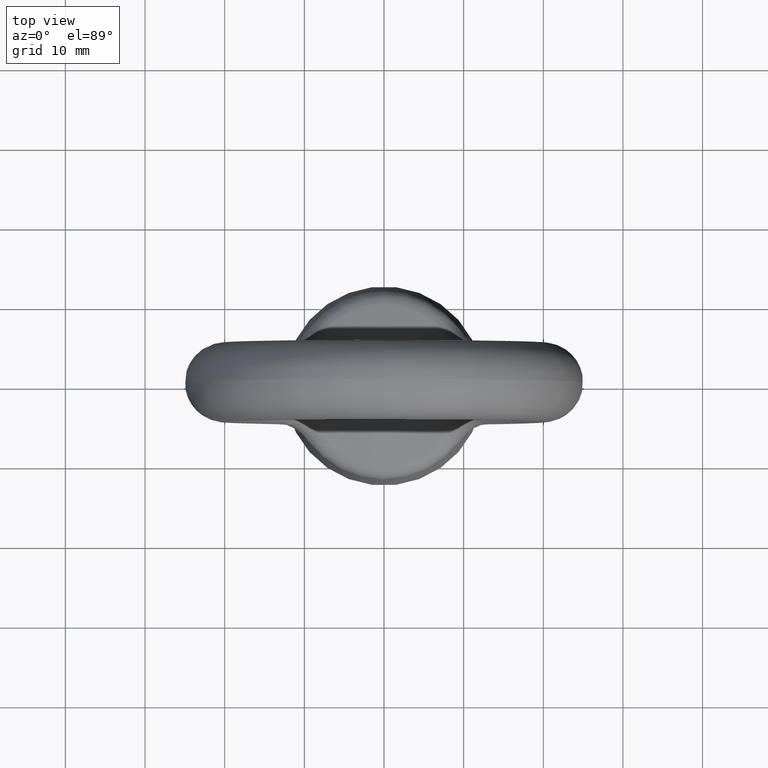
[diagram: clean part render]
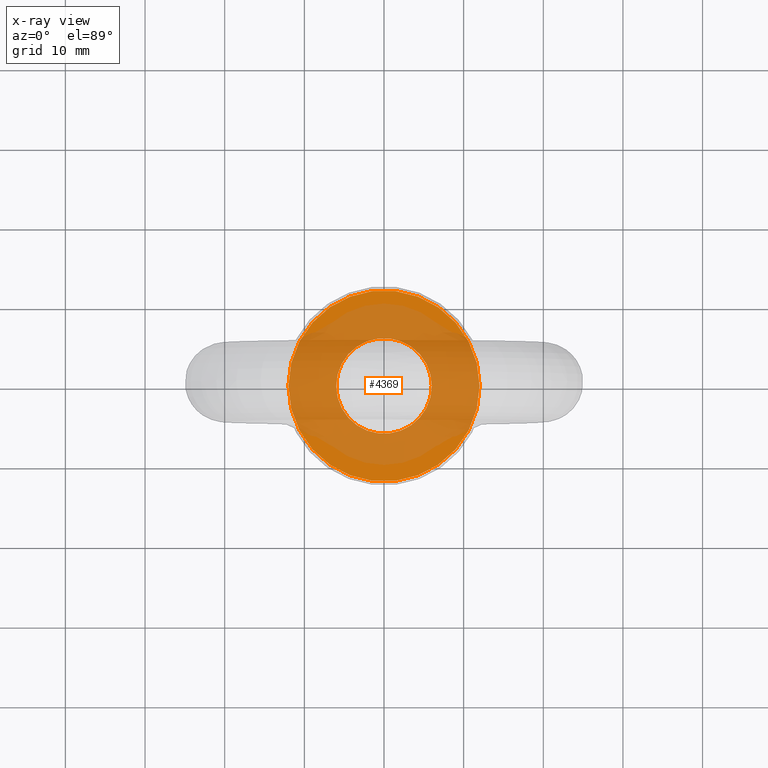
[diagram: x-ray — body ghosted, one internal face saturated and labeled with its STEP entity id]
A machine part, top view, then the same camera in x-ray: the body is ghosted and one INTERNAL B-rep face — a face not visible from any outside direction — is saturated and labeled: STEP entity #4369.
In plain terms, the highlighted planar face has unit normal (0, 0, 1).
Its self-contained STEP definition (entity closure, byte-faithful):
#4328 = VERTEX_POINT ( 'NONE', #8184 ) ;
#4345 = VERTEX_POINT ( 'NONE', #8192 ) ;
#4347 = EDGE_CURVE ( 'NONE', #4345, #4348, #8054, .T. ) ;
#4348 = VERTEX_POINT ( 'NONE', #8050 ) ;
#4368 = EDGE_LOOP ( 'NONE', ( #4443, #4444 ) ) ;
#4369 = ADVANCED_FACE ( 'NONE', ( #8101, #8071 ), #8070, .T. ) ;
#4370 = EDGE_CURVE ( 'NONE', #4386, #4328, #8155, .T. ) ;
#4385 = EDGE_CURVE ( 'NONE', #4328, #4386, #8060, .T. ) ;
#4386 = VERTEX_POINT ( 'NONE', #8056 ) ;
#4443 = ORIENTED_EDGE ( 'NONE', *, *, #4370, .T. ) ;
#4444 = ORIENTED_EDGE ( 'NONE', *, *, #4385, .T. ) ;
#4445 = EDGE_LOOP ( 'NONE', ( #4448, #4449 ) ) ;
#4448 = ORIENTED_EDGE ( 'NONE', *, *, #4347, .F. ) ;
#4449 = ORIENTED_EDGE ( 'NONE', *, *, #4454, .F. ) ;
#4454 = EDGE_CURVE ( 'NONE', #4348, #4345, #8319, .T. ) ;
#8050 = CARTESIAN_POINT ( 'NONE',  ( 12.00000000000000000, 1.469527624586852700E-015, -26.00000000000000000 ) ) ;
#8051 = DIRECTION ( 'NONE',  ( 1.000000000000000000, 0.0000000000000000000, 0.0000000000000000000 ) ) ;
#8052 = DIRECTION ( 'NONE',  ( 0.0000000000000000000, 0.0000000000000000000, -1.000000000000000000 ) ) ;
#8053 = AXIS2_PLACEMENT_3D ( 'NONE', #8191, #8052, #8051 ) ;
#8054 = CIRCLE ( 'NONE', #8053, 12.00000000000000000 ) ;
#8056 = CARTESIAN_POINT ( 'NONE',  ( -6.000000000000000000, 0.0000000000000000000, -26.00000000000000000 ) ) ;
#8057 = DIRECTION ( 'NONE',  ( 1.000000000000000000, 0.0000000000000000000, 0.0000000000000000000 ) ) ;
#8058 = DIRECTION ( 'NONE',  ( 0.0000000000000000000, 0.0000000000000000000, -1.000000000000000000 ) ) ;
#8059 = AXIS2_PLACEMENT_3D ( 'NONE', #8064, #8058, #8057 ) ;
#8060 = CIRCLE ( 'NONE', #8059, 6.000000000000000000 ) ;
#8064 = CARTESIAN_POINT ( 'NONE',  ( 0.0000000000000000000, 0.0000000000000000000, -26.00000000000000000 ) ) ;
#8065 = CARTESIAN_POINT ( 'NONE',  ( 0.0000000000000000000, 0.0000000000000000000, -26.00000000000000000 ) ) ;
#8066 = DIRECTION ( 'NONE',  ( 1.000000000000000000, 0.0000000000000000000, 0.0000000000000000000 ) ) ;
#8067 = DIRECTION ( 'NONE',  ( 0.0000000000000000000, 0.0000000000000000000, 1.000000000000000000 ) ) ;
#8068 = CARTESIAN_POINT ( 'NONE',  ( 0.0000000000000000000, 0.0000000000000000000, -26.00000000000000000 ) ) ;
#8069 = AXIS2_PLACEMENT_3D ( 'NONE', #8068, #8067, #8066 ) ;
#8070 = PLANE ( 'NONE',  #8069 ) ;
#8071 = FACE_OUTER_BOUND ( 'NONE', #4445, .T. ) ;
#8101 = FACE_BOUND ( 'NONE', #4368, .T. ) ;
#8152 = DIRECTION ( 'NONE',  ( 1.000000000000000000, 0.0000000000000000000, 0.0000000000000000000 ) ) ;
#8153 = DIRECTION ( 'NONE',  ( 0.0000000000000000000, 0.0000000000000000000, -1.000000000000000000 ) ) ;
#8154 = AXIS2_PLACEMENT_3D ( 'NONE', #8065, #8153, #8152 ) ;
#8155 = CIRCLE ( 'NONE', #8154, 6.000000000000000000 ) ;
#8184 = CARTESIAN_POINT ( 'NONE',  ( 6.000000000000000000, 7.347638122934263500E-016, -26.00000000000000000 ) ) ;
#8191 = CARTESIAN_POINT ( 'NONE',  ( 0.0000000000000000000, 0.0000000000000000000, -26.00000000000000000 ) ) ;
#8192 = CARTESIAN_POINT ( 'NONE',  ( -12.00000000000000000, 0.0000000000000000000, -26.00000000000000000 ) ) ;
#8315 = DIRECTION ( 'NONE',  ( 1.000000000000000000, 0.0000000000000000000, 0.0000000000000000000 ) ) ;
#8316 = DIRECTION ( 'NONE',  ( 0.0000000000000000000, 0.0000000000000000000, -1.000000000000000000 ) ) ;
#8317 = CARTESIAN_POINT ( 'NONE',  ( 0.0000000000000000000, 0.0000000000000000000, -26.00000000000000000 ) ) ;
#8318 = AXIS2_PLACEMENT_3D ( 'NONE', #8317, #8316, #8315 ) ;
#8319 = CIRCLE ( 'NONE', #8318, 12.00000000000000000 ) ;